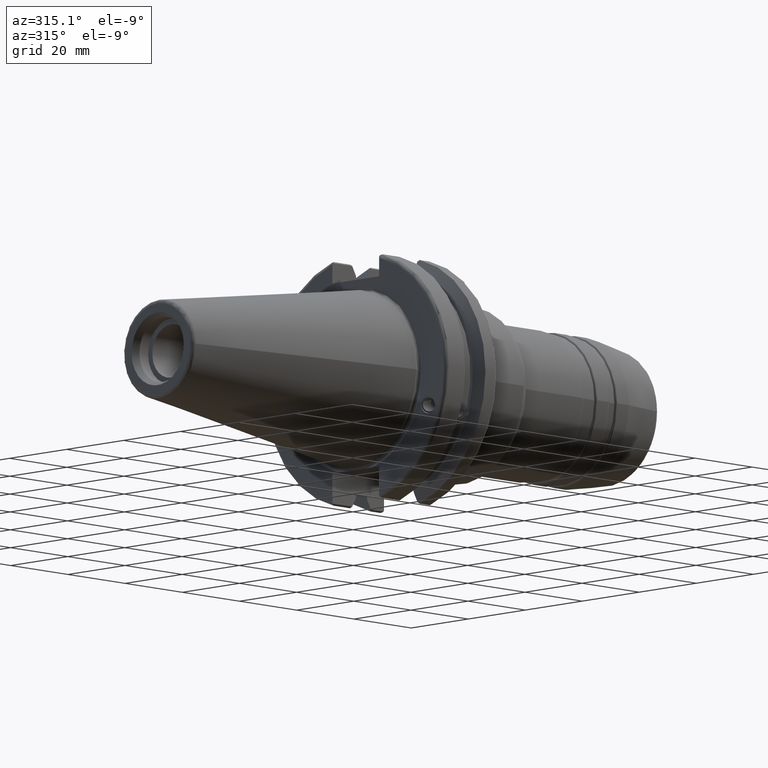
[diagram: clean part render]
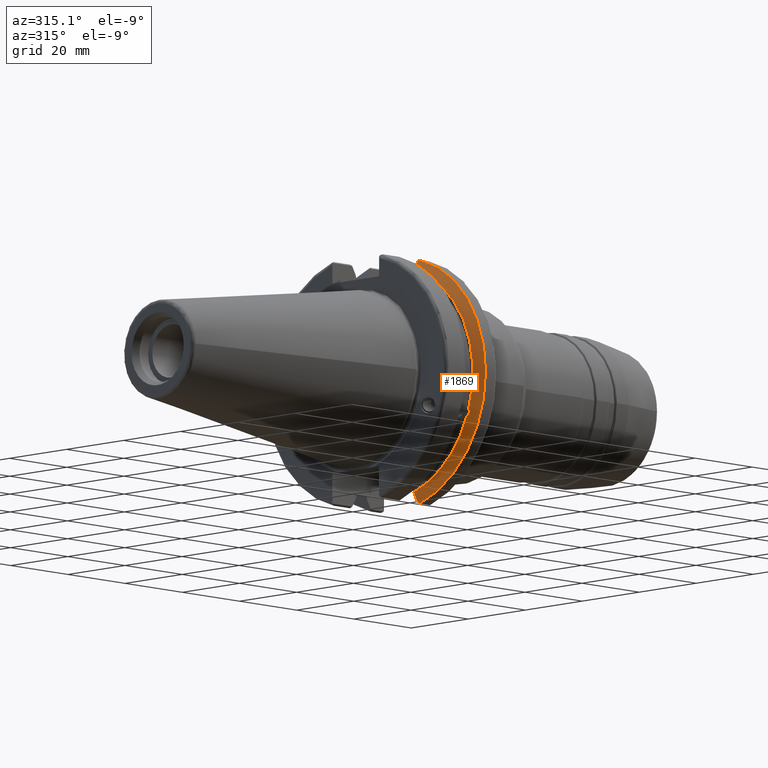
[diagram: same view with one face highlighted and labeled with its STEP entity id]
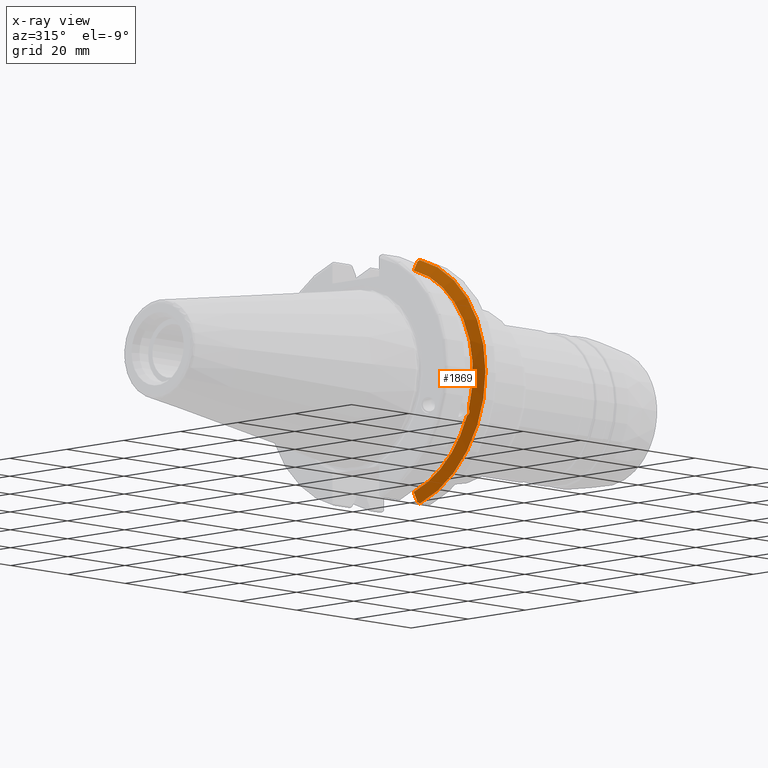
[diagram: x-ray of the same camera — body ghosted, the highlighted face saturated]
A machine part, auxiliary view. The second image highlights one B-rep face of the part: STEP entity #1869.
The next image is the same camera in x-ray: the body ghosted, the highlighted face saturated — about 0% of this face is hidden behind the body in this view.
In plain terms, the highlighted conical surface has half-angle 60 deg.
Its self-contained STEP definition (entity closure, byte-faithful):
#15=(
BOUNDED_CURVE()
B_SPLINE_CURVE(2,(#3227,#3228,#3229),.UNSPECIFIED.,.F.,.F.)
B_SPLINE_CURVE_WITH_KNOTS((3,3),(0.,0.276549142796629),.UNSPECIFIED.)
CURVE()
GEOMETRIC_REPRESENTATION_ITEM()
RATIONAL_B_SPLINE_CURVE((1.,1.00095203903668,1.0003161444493))
REPRESENTATION_ITEM('')
);
#16=(
BOUNDED_CURVE()
B_SPLINE_CURVE(2,(#3231,#3232,#3233),.UNSPECIFIED.,.F.,.F.)
B_SPLINE_CURVE_WITH_KNOTS((3,3),(0.,0.0639048713676116),.UNSPECIFIED.)
CURVE()
GEOMETRIC_REPRESENTATION_ITEM()
RATIONAL_B_SPLINE_CURVE((1.,1.00028444218285,1.00047644010576))
REPRESENTATION_ITEM('')
);
#17=(
BOUNDED_CURVE()
B_SPLINE_CURVE(2,(#3237,#3238,#3239),.UNSPECIFIED.,.F.,.F.)
B_SPLINE_CURVE_WITH_KNOTS((3,3),(0.329353533631189,0.393258405001022),
 .UNSPECIFIED.)
CURVE()
GEOMETRIC_REPRESENTATION_ITEM()
RATIONAL_B_SPLINE_CURVE((1.00047644010573,1.00028444218283,1.))
REPRESENTATION_ITEM('')
);
#18=(
BOUNDED_CURVE()
B_SPLINE_CURVE(2,(#3241,#3242,#3243),.UNSPECIFIED.,.F.,.F.)
B_SPLINE_CURVE_WITH_KNOTS((3,3),(0.0550586467392268,0.331607789535849),
 .UNSPECIFIED.)
CURVE()
GEOMETRIC_REPRESENTATION_ITEM()
RATIONAL_B_SPLINE_CURVE((1.00031614444967,1.00095203903781,1.))
REPRESENTATION_ITEM('')
);
#58=B_SPLINE_CURVE_WITH_KNOTS('',3,(#3134,#3135,#3136,#3137,#3138,#3139,
#3140,#3141),.UNSPECIFIED.,.F.,.F.,(4,2,2,4),(0.451995700189024,0.464547828547661,
0.504528771685166,0.544509714822671),.UNSPECIFIED.);
#62=B_SPLINE_CURVE_WITH_KNOTS('',3,(#3196,#3197,#3198,#3199,#3200,#3201,
#3202,#3203),.UNSPECIFIED.,.F.,.F.,(4,2,2,4),(0.544509714822671,0.584490657960176,
0.624471601097681,0.637023729456318),.UNSPECIFIED.);
#362=CONICAL_SURFACE('',#2085,30.3546886482472,1.0471975511966);
#415=FACE_OUTER_BOUND('',#528,.T.);
#528=EDGE_LOOP('',(#1456,#1457,#1458,#1459,#1460,#1461,#1462,#1463,#1464));
#678=CIRCLE('',#2086,28.9593772964944);
#679=CIRCLE('',#2087,31.75);
#680=CIRCLE('',#2088,28.9593772964944);
#805=VERTEX_POINT('',#3131);
#806=VERTEX_POINT('',#3133);
#813=VERTEX_POINT('',#3194);
#819=VERTEX_POINT('',#3224);
#820=VERTEX_POINT('',#3226);
#821=VERTEX_POINT('',#3230);
#822=VERTEX_POINT('',#3234);
#823=VERTEX_POINT('',#3236);
#824=VERTEX_POINT('',#3240);
#1035=EDGE_CURVE('',#806,#805,#58,.T.);
#1043=EDGE_CURVE('',#805,#813,#62,.T.);
#1052=EDGE_CURVE('',#813,#819,#678,.T.);
#1053=EDGE_CURVE('',#819,#820,#15,.T.);
#1054=EDGE_CURVE('',#821,#820,#16,.T.);
#1055=EDGE_CURVE('',#822,#821,#679,.T.);
#1056=EDGE_CURVE('',#823,#822,#17,.T.);
#1057=EDGE_CURVE('',#823,#824,#18,.T.);
#1058=EDGE_CURVE('',#824,#806,#680,.T.);
#1456=ORIENTED_EDGE('',*,*,#1035,.T.);
#1457=ORIENTED_EDGE('',*,*,#1043,.T.);
#1458=ORIENTED_EDGE('',*,*,#1052,.T.);
#1459=ORIENTED_EDGE('',*,*,#1053,.T.);
#1460=ORIENTED_EDGE('',*,*,#1054,.F.);
#1461=ORIENTED_EDGE('',*,*,#1055,.F.);
#1462=ORIENTED_EDGE('',*,*,#1056,.F.);
#1463=ORIENTED_EDGE('',*,*,#1057,.T.);
#1464=ORIENTED_EDGE('',*,*,#1058,.T.);
#1869=ADVANCED_FACE('',(#415),#362,.T.);
#2085=AXIS2_PLACEMENT_3D('',#3223,#2498,#2499);
#2086=AXIS2_PLACEMENT_3D('',#3225,#2500,#2501);
#2087=AXIS2_PLACEMENT_3D('',#3235,#2502,#2503);
#2088=AXIS2_PLACEMENT_3D('',#3244,#2504,#2505);
#2498=DIRECTION('center_axis',(1.,0.,0.));
#2499=DIRECTION('ref_axis',(0.,-1.,-1.22464679914735E-16));
#2500=DIRECTION('center_axis',(1.,0.,0.));
#2501=DIRECTION('ref_axis',(0.,0.,-1.));
#2502=DIRECTION('center_axis',(1.,0.,0.));
#2503=DIRECTION('ref_axis',(0.,0.,-1.));
#2504=DIRECTION('center_axis',(1.,0.,0.));
#2505=DIRECTION('ref_axis',(0.,0.,-1.));
#3131=CARTESIAN_POINT('',(13.276,-27.51401829017,-10.0142836826778));
#3133=CARTESIAN_POINT('',(13.091,-27.4956274489925,-9.09043478536247));
#3134=CARTESIAN_POINT('Ctrl Pts',(13.091,-27.4956274489925,-9.09043478536247));
#3135=CARTESIAN_POINT('Ctrl Pts',(13.1051204071996,-27.5087667900418,-9.12860597076219));
#3136=CARTESIAN_POINT('Ctrl Pts',(13.1185929817857,-27.5206055003513,-9.16696618806878));
#3137=CARTESIAN_POINT('Ctrl Pts',(13.171981441159,-27.5642934663232,-9.32791534028656));
#3138=CARTESIAN_POINT('Ctrl Pts',(13.2101197084175,-27.5867382255984,-9.46717946402648));
#3139=CARTESIAN_POINT('Ctrl Pts',(13.2623106446058,-27.5847569104122,-9.74771639360672));
#3140=CARTESIAN_POINT('Ctrl Pts',(13.276,-27.559599249844,-9.8890510252165));
#3141=CARTESIAN_POINT('Ctrl Pts',(13.276,-27.51401829017,-10.0142836826778));
#3194=CARTESIAN_POINT('',(13.091,-26.9060914640648,-10.7101715919071));
#3196=CARTESIAN_POINT('Ctrl Pts',(13.276,-27.51401829017,-10.0142836826778));
#3197=CARTESIAN_POINT('Ctrl Pts',(13.276,-27.4684373304961,-10.139516340139));
#3198=CARTESIAN_POINT('Ctrl Pts',(13.2623106446058,-27.3968610665578,-10.2639559818059));
#3199=CARTESIAN_POINT('Ctrl Pts',(13.2101197084175,-27.2180531796526,-10.4801333026531));
#3200=CARTESIAN_POINT('Ctrl Pts',(13.171981441159,-27.1113422433189,-10.5723885976054));
#3201=CARTESIAN_POINT('Ctrl Pts',(13.1185929817857,-26.9744191989197,-10.6676007180674));
#3202=CARTESIAN_POINT('Ctrl Pts',(13.1051204071996,-26.9406927482839,-10.6893765730703));
#3203=CARTESIAN_POINT('Ctrl Pts',(13.091,-26.9060914640648,-10.7101715919071));
#3223=CARTESIAN_POINT('Origin',(13.8965833845378,0.,0.));
#3224=CARTESIAN_POINT('',(13.091,-8.19,-27.7771386827498));
#3225=CARTESIAN_POINT('Origin',(13.091,0.,0.));
#3226=CARTESIAN_POINT('',(14.4234146964874,-8.19,-30.1755016258903));
#3227=CARTESIAN_POINT('Ctrl Pts',(13.091,-8.19,-27.7771386827498));
#3228=CARTESIAN_POINT('Ctrl Pts',(13.7296364384722,-8.19,-28.9303689539635));
#3229=CARTESIAN_POINT('Ctrl Pts',(14.4234146964874,-8.19,-30.1755016258903));
#3230=CARTESIAN_POINT('',(14.7021667690756,-8.67204822802685,-30.5427254764662));
#3231=CARTESIAN_POINT('Ctrl Pts',(14.7021667690756,-8.67204822802686,-30.5427254764662));
#3232=CARTESIAN_POINT('Ctrl Pts',(14.5611085187837,-8.42917748262647,-30.357706789263));
#3233=CARTESIAN_POINT('Ctrl Pts',(14.4234146964874,-8.19,-30.1755016258903));
#3234=CARTESIAN_POINT('',(14.7021667690756,-8.67204822802685,30.5427254764662));
#3235=CARTESIAN_POINT('Origin',(14.7021667690756,0.,0.));
#3236=CARTESIAN_POINT('',(14.4234146964874,-8.19,30.1755016258903));
#3237=CARTESIAN_POINT('Ctrl Pts',(14.4234146964874,-8.19,30.1755016258903));
#3238=CARTESIAN_POINT('Ctrl Pts',(14.5611085187884,-8.42917748263467,30.3577067892692));
#3239=CARTESIAN_POINT('Ctrl Pts',(14.7021667690756,-8.67204822802685,30.5427254764662));
#3240=CARTESIAN_POINT('',(13.091,-8.19,27.7771386827498));
#3241=CARTESIAN_POINT('Ctrl Pts',(14.4234146964874,-8.19,30.1755016258903));
#3242=CARTESIAN_POINT('Ctrl Pts',(13.7296364384731,-8.19,28.9303689539651));
#3243=CARTESIAN_POINT('Ctrl Pts',(13.091,-8.19,27.7771386827498));
#3244=CARTESIAN_POINT('Origin',(13.091,0.,0.));